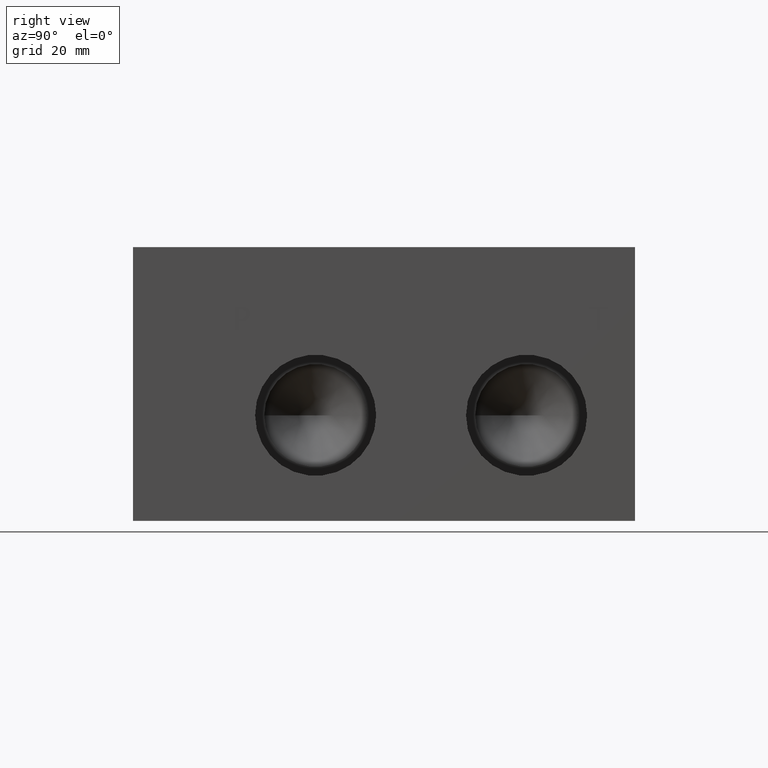
[diagram: clean part render]
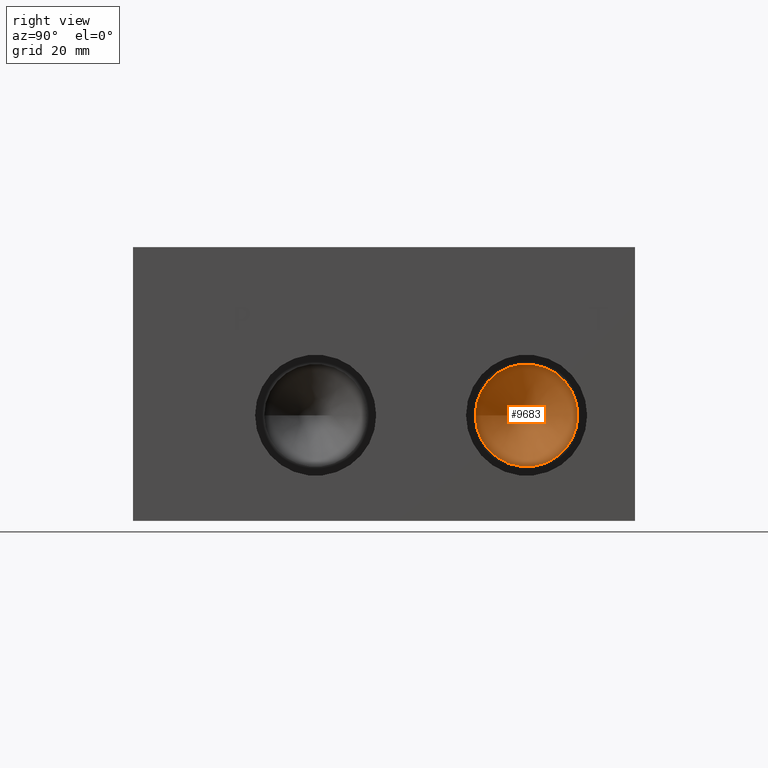
[diagram: same view with one face highlighted and labeled with its STEP entity id]
A machine part, right view. The second image highlights one B-rep face of the part: STEP entity #9683.
In plain terms, the highlighted conical surface has half-angle 60 deg.
Its self-contained STEP definition (entity closure, byte-faithful):
#50=CONICAL_SURFACE('',#10072,7.14375,1.0471975511966);
#82=CIRCLE('',#10073,14.2875);
#83=CIRCLE('',#10074,14.2875);
#1001=FACE_OUTER_BOUND('',#1541,.T.);
#1541=EDGE_LOOP('',(#8344,#8345,#8346,#8347));
#2535=LINE('',#16275,#3479);
#3479=VECTOR('',#11754,7.14375);
#4581=VERTEX_POINT('',#16271);
#4582=VERTEX_POINT('',#16272);
#4583=VERTEX_POINT('',#16274);
#5879=EDGE_CURVE('',#4581,#4582,#82,.T.);
#5880=EDGE_CURVE('',#4582,#4583,#2535,.T.);
#5881=EDGE_CURVE('',#4582,#4581,#83,.T.);
#8344=ORIENTED_EDGE('',*,*,#5879,.T.);
#8345=ORIENTED_EDGE('',*,*,#5880,.T.);
#8346=ORIENTED_EDGE('',*,*,#5880,.F.);
#8347=ORIENTED_EDGE('',*,*,#5881,.T.);
#9683=ADVANCED_FACE('',(#1001),#50,.F.);
#10072=AXIS2_PLACEMENT_3D('',#16270,#11750,#11751);
#10073=AXIS2_PLACEMENT_3D('',#16273,#11752,#11753);
#10074=AXIS2_PLACEMENT_3D('',#16276,#11755,#11756);
#11750=DIRECTION('center_axis',(1.,0.,0.));
#11751=DIRECTION('ref_axis',(0.,1.,0.));
#11752=DIRECTION('center_axis',(1.,0.,0.));
#11753=DIRECTION('ref_axis',(0.,1.,0.));
#11754=DIRECTION('',(-0.5,0.866025403784438,1.06057523872491E-16));
#11755=DIRECTION('center_axis',(1.,0.,0.));
#11756=DIRECTION('ref_axis',(0.,1.,0.));
#16270=CARTESIAN_POINT('Origin',(103.051464014477,109.5248,29.3624));
#16271=CARTESIAN_POINT('',(107.17591,123.8123,29.3624));
#16272=CARTESIAN_POINT('',(107.17591,95.2373,29.3624));
#16273=CARTESIAN_POINT('Origin',(107.17591,109.5248,29.3624));
#16274=CARTESIAN_POINT('',(98.9270180289532,109.5248,29.3624));
#16275=CARTESIAN_POINT('',(103.051464014477,102.38105,29.3624));
#16276=CARTESIAN_POINT('Origin',(107.17591,109.5248,29.3624));